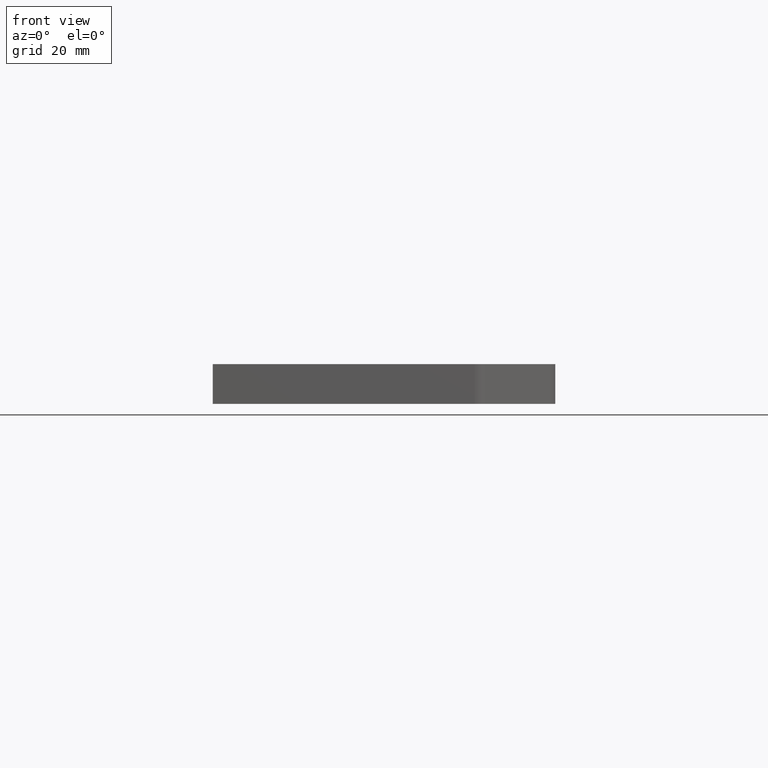
[diagram: clean part render]
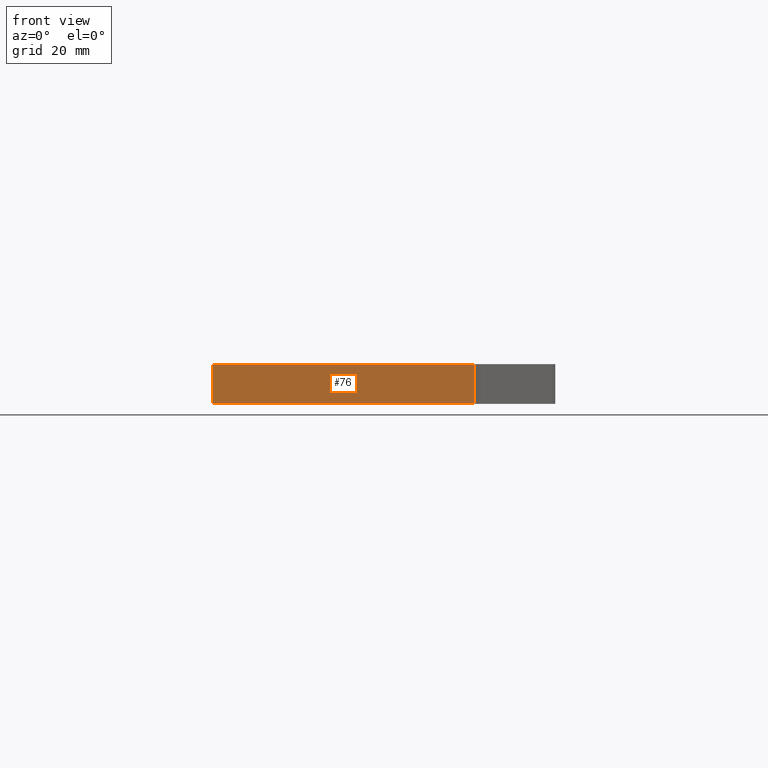
[diagram: same view with one face highlighted and labeled with its STEP entity id]
A machine part, front view. The second image highlights one B-rep face of the part: STEP entity #76.
In plain terms, the highlighted planar face has unit normal (0, -1, 0).
Its self-contained STEP definition (entity closure, byte-faithful):
#8 = CARTESIAN_POINT ( 'NONE',  ( -34.50000000000000711, -65.00000000000001421, -8.000000000000000000 ) ) ;
#15 = VECTOR ( 'NONE', #96, 1000.000000000000000 ) ;
#30 = CARTESIAN_POINT ( 'NONE',  ( -34.50000000000000711, -65.00000000000001421, -8.000000000000000000 ) ) ;
#34 = ORIENTED_EDGE ( 'NONE', *, *, #233, .F. ) ;
#40 = EDGE_CURVE ( 'NONE', #399, #329, #313, .T. ) ;
#53 = VERTEX_POINT ( 'NONE', #315 ) ;
#62 = LINE ( 'NONE', #30, #15 ) ;
#76 = ADVANCED_FACE ( 'NONE', ( #435 ), #332, .T. ) ;
#93 = CARTESIAN_POINT ( 'NONE',  ( -34.50000000000000711, -65.00000000000001421, -8.000000000000000000 ) ) ;
#96 = DIRECTION ( 'NONE',  ( 0.000000000000000000, 0.000000000000000000, 1.000000000000000000 ) ) ;
#101 = LINE ( 'NONE', #8, #216 ) ;
#115 = AXIS2_PLACEMENT_3D ( 'NONE', #93, #192, #236 ) ;
#125 = CARTESIAN_POINT ( 'NONE',  ( -34.50000000000000711, -65.00000000000001421, 0.000000000000000000 ) ) ;
#143 = DIRECTION ( 'NONE',  ( 1.000000000000000000, 0.000000000000000000, 0.000000000000000000 ) ) ;
#146 = VERTEX_POINT ( 'NONE', #125 ) ;
#158 = CARTESIAN_POINT ( 'NONE',  ( 18.25735931288068059, -65.00000000000001421, -8.000000000000000000 ) ) ;
#192 = DIRECTION ( 'NONE',  ( 0.000000000000000000, -1.000000000000000000, 0.000000000000000000 ) ) ;
#211 = LINE ( 'NONE', #352, #441 ) ;
#216 = VECTOR ( 'NONE', #143, 1000.000000000000000 ) ;
#233 = EDGE_CURVE ( 'NONE', #53, #146, #62, .T. ) ;
#236 = DIRECTION ( 'NONE',  ( 0.000000000000000000, -0.000000000000000000, -1.000000000000000000 ) ) ;
#252 = ORIENTED_EDGE ( 'NONE', *, *, #40, .T. ) ;
#257 = EDGE_LOOP ( 'NONE', ( #433, #252, #287, #34 ) ) ;
#262 = CARTESIAN_POINT ( 'NONE',  ( 18.25735931288068059, -65.00000000000001421, 0.000000000000000000 ) ) ;
#285 = DIRECTION ( 'NONE',  ( 1.000000000000000000, 0.000000000000000000, 0.000000000000000000 ) ) ;
#287 = ORIENTED_EDGE ( 'NONE', *, *, #406, .F. ) ;
#307 = CARTESIAN_POINT ( 'NONE',  ( 18.25735931288068059, -65.00000000000001421, -8.000000000000000000 ) ) ;
#313 = LINE ( 'NONE', #158, #326 ) ;
#315 = CARTESIAN_POINT ( 'NONE',  ( -34.50000000000000711, -65.00000000000001421, -8.000000000000000000 ) ) ;
#326 = VECTOR ( 'NONE', #427, 1000.000000000000000 ) ;
#329 = VERTEX_POINT ( 'NONE', #262 ) ;
#332 = PLANE ( 'NONE',  #115 ) ;
#352 = CARTESIAN_POINT ( 'NONE',  ( -34.50000000000000711, -65.00000000000001421, 0.000000000000000000 ) ) ;
#399 = VERTEX_POINT ( 'NONE', #307 ) ;
#403 = EDGE_CURVE ( 'NONE', #53, #399, #101, .T. ) ;
#406 = EDGE_CURVE ( 'NONE', #146, #329, #211, .T. ) ;
#427 = DIRECTION ( 'NONE',  ( -0.000000000000000000, -0.000000000000000000, 1.000000000000000000 ) ) ;
#433 = ORIENTED_EDGE ( 'NONE', *, *, #403, .T. ) ;
#435 = FACE_OUTER_BOUND ( 'NONE', #257, .T. ) ;
#441 = VECTOR ( 'NONE', #285, 1000.000000000000000 ) ;